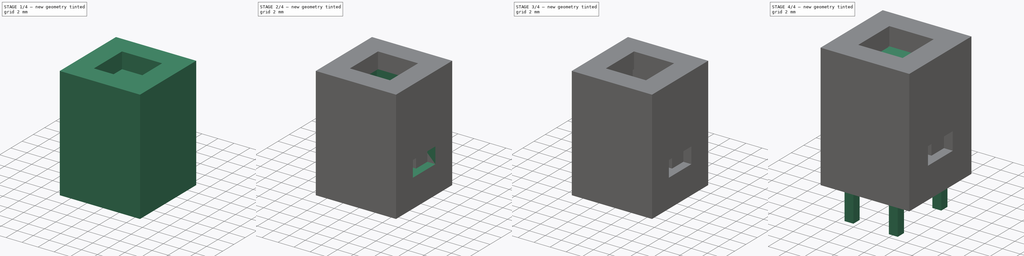
[diagram: build sequence overview — one tinted view per stage of 4, left to right]
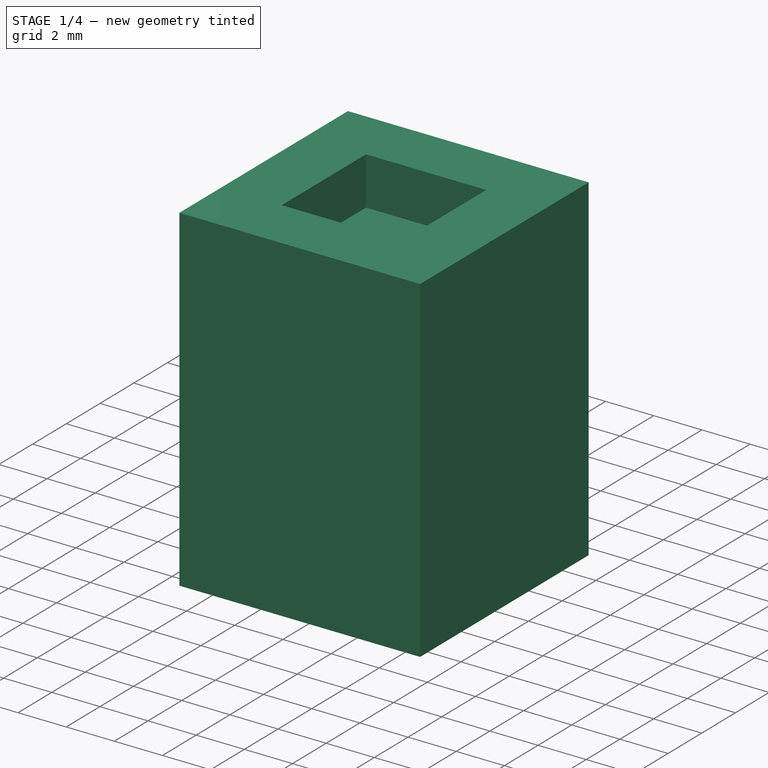
[diagram: stage 1 of 4 — iso view after this stage's code; geometry added in this stage tinted green]
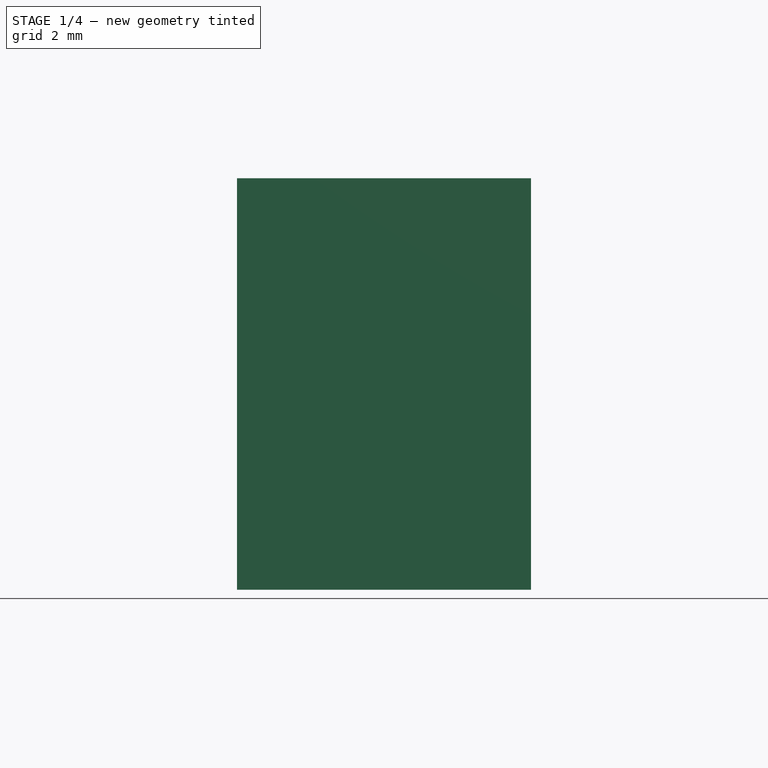
[diagram: stage 1 of 4 — front view after this stage's code; geometry added in this stage tinted green]
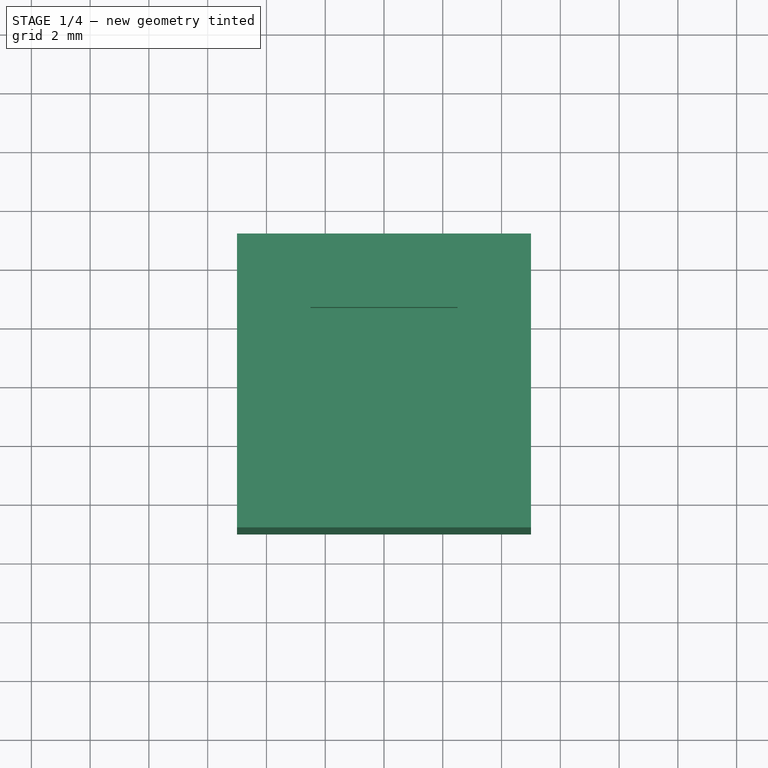
[diagram: stage 1 of 4 — top view after this stage's code; geometry added in this stage tinted green]
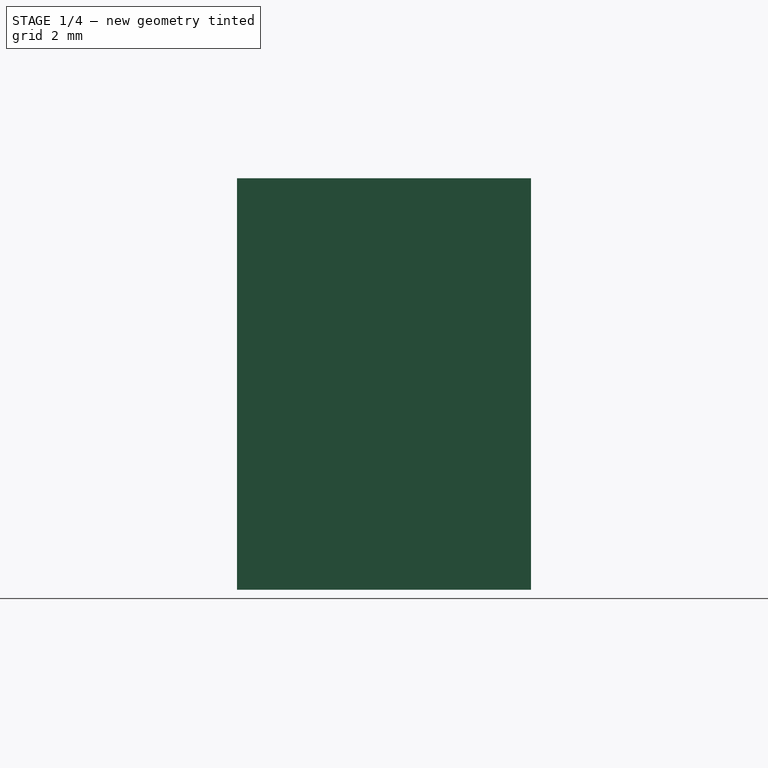
[diagram: stage 1 of 4 — right view after this stage's code; geometry added in this stage tinted green]
FCSTD DOCUMENT  (FreeCAD 0.18R4 (GitTag))
Label: clickbutton
License: All rights reserved
LicenseURL: http://en.wikipedia.org/wiki/All_rights_reserved
objects: Sketcher::SketchObject×10, PartDesign::Pad×6, PartDesign::Pocket×4, PartDesign::Body×4, Part::Box×1
note: 35 computed .brp shape members not serialized (recipe doc carries the construction recipe); baked Part::Feature solids carry a one-line shape summary decoded from their .brp

FEATURE [Sketcher::SketchObject] Sketch
  MapMode = 5
  Support = -> [XY_Plane001]
  sketch-geometry (4):
    g0: LineSegment StartX=-5 StartY=5 StartZ=0 EndX=5 EndY=5 EndZ=0
    g1: LineSegment StartX=5 StartY=5 StartZ=0 EndX=5 EndY=-5 EndZ=0
    g2: LineSegment StartX=5 StartY=-5 StartZ=0 EndX=-5 EndY=-5 EndZ=0
    g3: LineSegment StartX=-5 StartY=-5 StartZ=0 EndX=-5 EndY=5 EndZ=0
  constraints (10):
    c: Coincident(g0,g1)
    c: Coincident(g1,g2)
    c: Coincident(g2,g3)
    c: Coincident(g3,g0)
    c: Horizontal(g2)
    c: Vertical(g1)
    c: DistanceX(g0,g0) = 10
    c: Equal(g0,g1)
    c: Symmetric(g0,g2,g-1)
    c: Symmetric(g0,g0,g-2)
FEATURE [PartDesign::Pad] Pad
  Length = 14
  Length2 = 100
  Profile = -> Sketch
  Type = 0
FEATURE [Sketcher::SketchObject] Sketch001
  MapMode = 5
  Placement = pos=(0,0,14) rot=(0,0,1;0rad)
  Support = -> [Pad]
  sketch-geometry (4):
    g0: LineSegment StartX=-2.5 StartY=2.5 StartZ=0 EndX=2.5 EndY=2.5 EndZ=0
    g1: LineSegment StartX=2.5 StartY=2.5 StartZ=0 EndX=2.5 EndY=-2.5 EndZ=0
    g2: LineSegment StartX=2.5 StartY=-2.5 StartZ=0 EndX=-2.5 EndY=-2.5 EndZ=0
    g3: LineSegment StartX=-2.5 StartY=-2.5 StartZ=0 EndX=-2.5 EndY=2.5 EndZ=0
  constraints (10):
    c: Coincident(g0,g1)
    c: Coincident(g1,g2)
    c: Coincident(g2,g3)
    c: Coincident(g3,g0)
    c: Horizontal(g2)
    c: Vertical(g1)
    c: Equal(g1,g0)
    c: Symmetric(g0,g2,g-1)
    c: Symmetric(g0,g0,g-2)
    c: DistanceX(g0,g0) = 5
FEATURE [PartDesign::Pocket] Pocket
  BaseFeature = -> Pad
  Length = 2
  Length2 = 100
  Profile = -> Sketch001
  Type = 0
FEATURE [PartDesign::Body] Body001
  Group = -> [Sketch,Pad,Sketch001,Pocket,Pocket003,Sketch008,Pocket004,Sketch009,Pocket005]
  Origin = -> Origin001
  Tip = -> Pocket005
FEATURE [PartDesign::Body] Body003  label="Lock"
  Origin = -> Origin003
  Placement = pos=(0,11,0) rot=(0,0,1;0rad)
FEATURE [Part::Box] Box  label="Cube"
  AttacherType = Attacher::AttachEngine3D
  Height = 10
  Length = 4
  Width = 2
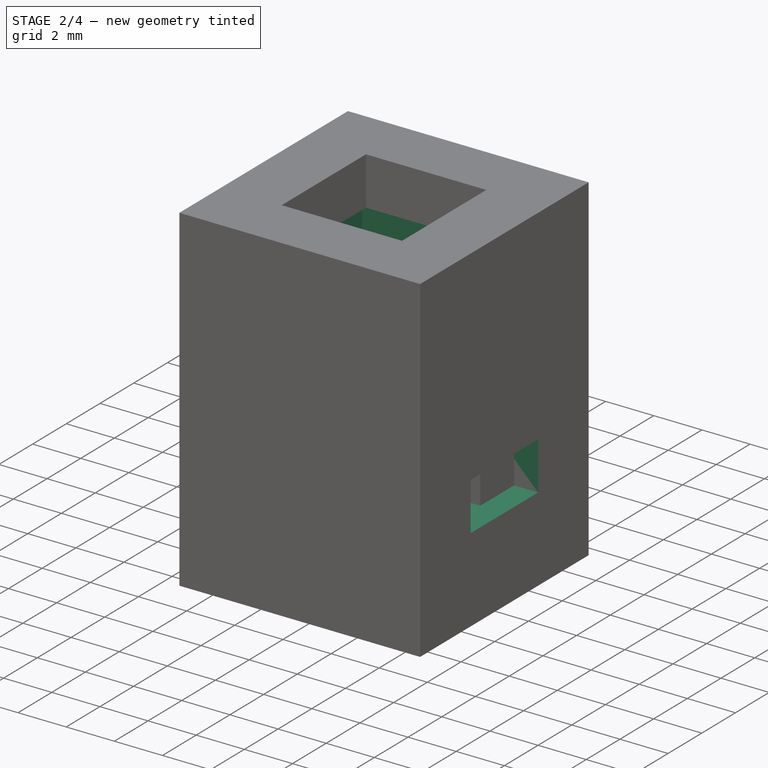
[diagram: stage 2 of 4 — iso view after this stage's code; geometry added in this stage tinted green]
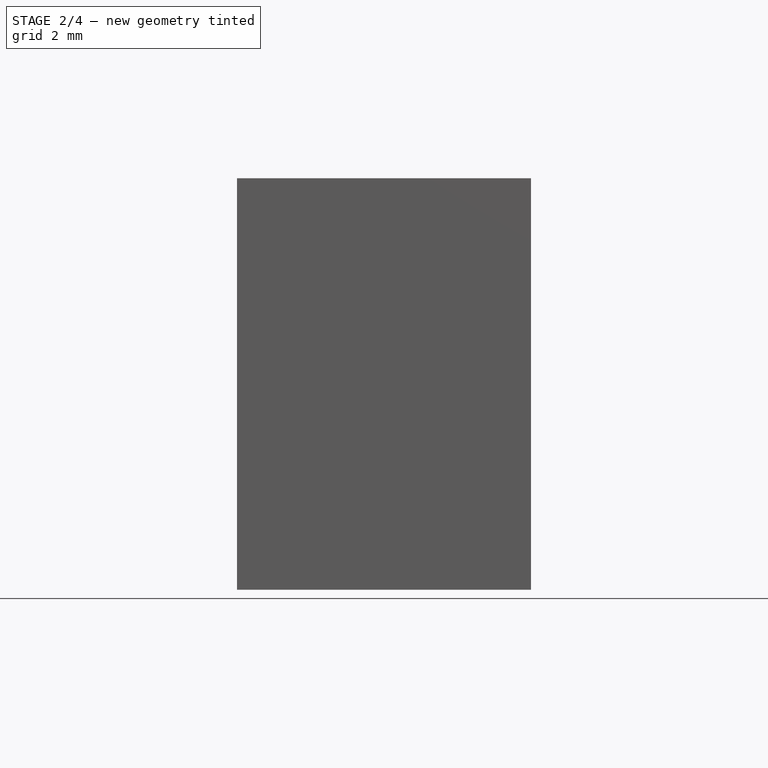
[diagram: stage 2 of 4 — front view after this stage's code; geometry added in this stage tinted green]
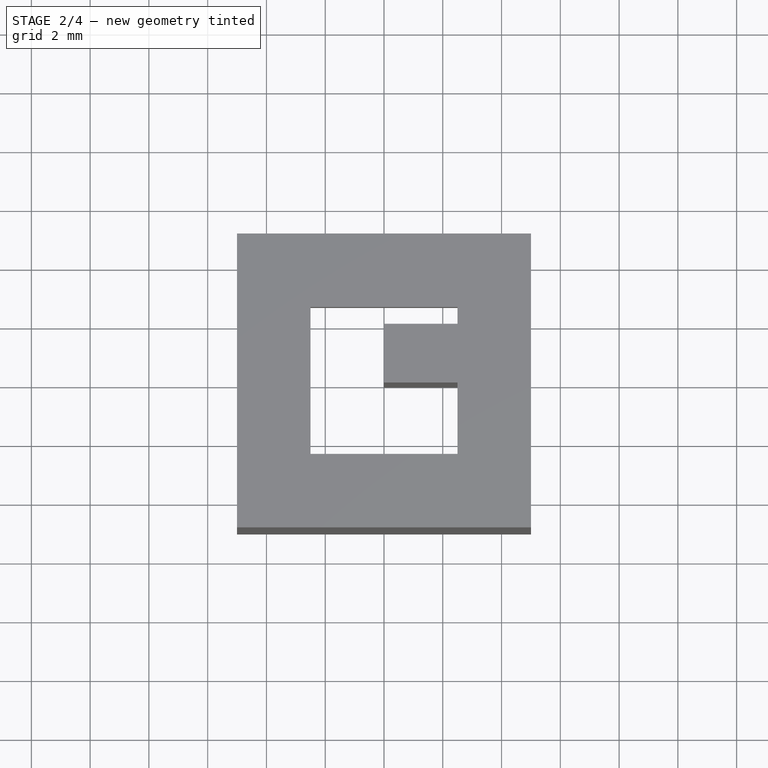
[diagram: stage 2 of 4 — top view after this stage's code; geometry added in this stage tinted green]
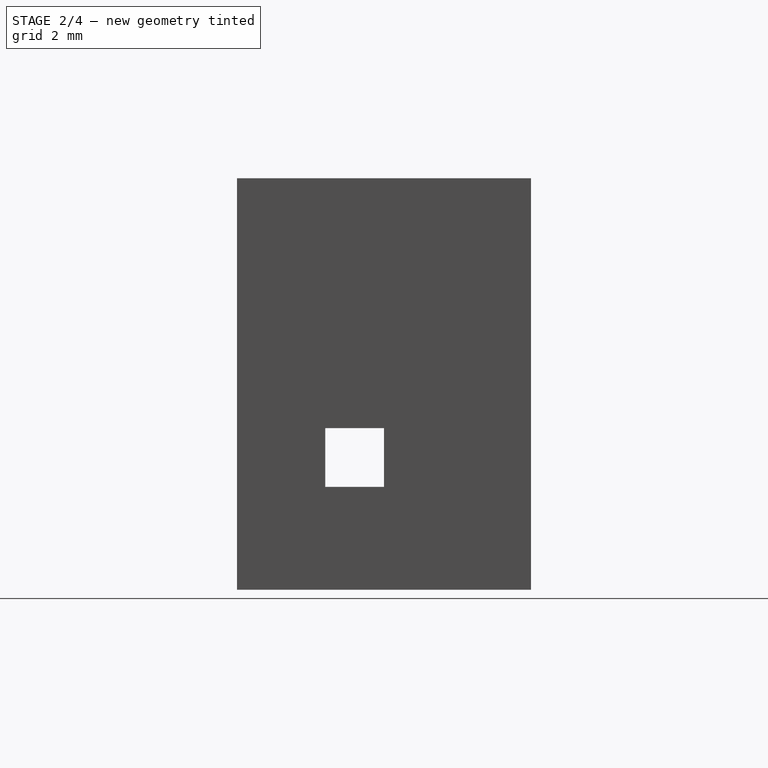
[diagram: stage 2 of 4 — right view after this stage's code; geometry added in this stage tinted green]
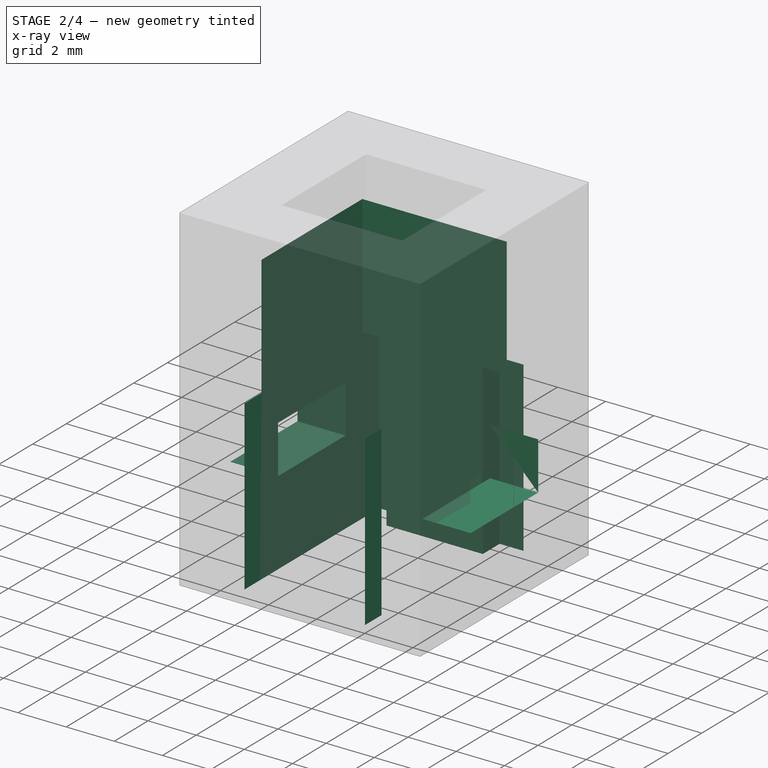
[diagram: stage 2 of 4 — x-ray composite at the iso view; earlier geometry ghosted, this stage's added geometry solid]
FEATURE [PartDesign::Body] Body002  label="Body_Switch"
  Group = -> [Sketch005,Pad003,Sketch006,Pad004,Sketch007,Pad005]
  Origin = -> Origin002
  Placement = pos=(0,0,5.5) rot=(0,0,1;0rad)
  Tip = -> Pad005
FEATURE [Sketcher::SketchObject] CopySketch009001  label="SwitchLegs"
  Placement = pos=(0,0,7) rot=(0,0,1;0rad)
  sketch-geometry (16):
    g0: LineSegment StartX=-3 StartY=4 StartZ=0 EndX=-2 EndY=4 EndZ=0
    g1: LineSegment StartX=-2 StartY=4 StartZ=0 EndX=-2 EndY=3 EndZ=0
    g2: LineSegment StartX=-2 StartY=3 StartZ=0 EndX=-3 EndY=3 EndZ=0
    g3: LineSegment StartX=-3 StartY=3 StartZ=0 EndX=-3 EndY=4 EndZ=0
    g4: LineSegment StartX=-3 StartY=-3 StartZ=0 EndX=-2 EndY=-3 EndZ=0
    g5: LineSegment StartX=-2 StartY=-3 StartZ=0 EndX=-2 EndY=-4 EndZ=0
    g6: LineSegment StartX=-2 StartY=-4 StartZ=0 EndX=-3 EndY=-4 EndZ=0
    g7: LineSegment StartX=-3 StartY=-4 StartZ=0 EndX=-3 EndY=-3 EndZ=0
    g8: LineSegment StartX=2 StartY=4 StartZ=0 EndX=3 EndY=4 EndZ=0
    g9: LineSegment StartX=3 StartY=4 StartZ=0 EndX=3 EndY=3 EndZ=0
    g10: LineSegment StartX=3 StartY=3 StartZ=0 EndX=2 EndY=3 EndZ=0
    g11: LineSegment StartX=2 StartY=3 StartZ=0 EndX=2 EndY=4 EndZ=0
    g12: LineSegment StartX=2 StartY=-3 StartZ=0 EndX=3 EndY=-3 EndZ=0
    g13: LineSegment StartX=3 StartY=-3 StartZ=0 EndX=3 EndY=-4 EndZ=0
    g14: LineSegment StartX=3 StartY=-4 StartZ=0 EndX=2 EndY=-4 EndZ=0
    g15: LineSegment StartX=2 StartY=-4 StartZ=0 EndX=2 EndY=-3 EndZ=0
  constraints (45):
    c: Coincident(g0,g1)
    c: Coincident(g1,g2)
    c: Coincident(g2,g3)
    c: Coincident(g3,g0)
    c: Horizontal(g0)
    c: Horizontal(g2)
    c: Vertical(g1)
    c: Vertical(g3)
    c: DistanceX(g0,g0) = 1
    c: Equal(g1,g0)
    c: Coincident(g4,g5)
    c: Coincident(g5,g6)
    c: Coincident(g6,g7)
    c: Coincident(g7,g4)
    c: Horizontal(g4)
    c: Horizontal(g6)
    c: Vertical(g5)
    c: Vertical(g7)
    c: Equal(g0,g4) = 1.5
    c: Equal(g5,g4)
    c: Coincident(g8,g9)
    c: Coincident(g9,g10)
    c: Coincident(g10,g11)
    c: Coincident(g11,g8)
    c: Horizontal(g8)
    c: Horizontal(g10)
    c: Vertical(g9)
    c: Vertical(g11)
    c: Equal(g0,g8) = 1
    c: Equal(g9,g8)
    c: Coincident(g12,g13)
    c: Coincident(g13,g14)
    c: Coincident(g14,g15)
    c: Coincident(g15,g12)
    c: Horizontal(g12)
    c: Horizontal(g14)
    c: Vertical(g13)
    c: Vertical(g15)
    c: Equal(g0,g12) = 1
    c: Equal(g13,g12)
    c: Symmetric(g12,g4,g-2)
    c: Symmetric(g9,g2,g-2)
    c: Symmetric(g2,g4,g-1)
    c: DistanceX(g-1,g9) = 3
    c: DistanceY(g-1,g9) = 3
FEATURE [PartDesign::Pocket] Pocket003  label="CutSwitchLegs"
  BaseFeature = -> Pocket
  Length = 5
  Length2 = 100
  Profile = -> CopySketch009001
  Type = 1
FEATURE [Sketcher::SketchObject] Sketch008
  MapMode = 5
  Placement = pos=(0,0,12) rot=(0,0,1;0rad)
  Support = -> [Pocket]
  sketch-geometry (4):
    g0: LineSegment StartX=-3 StartY=3 StartZ=0 EndX=3 EndY=3 EndZ=0
    g1: LineSegment StartX=3 StartY=3 StartZ=0 EndX=3 EndY=-3 EndZ=0
    g2: LineSegment StartX=3 StartY=-3 StartZ=0 EndX=-3 EndY=-3 EndZ=0
    g3: LineSegment StartX=-3 StartY=-3 StartZ=0 EndX=-3 EndY=3 EndZ=0
  constraints (10):
    c: Coincident(g0,g1)
    c: Coincident(g1,g2)
    c: Coincident(g2,g3)
    c: Coincident(g3,g0)
    c: Horizontal(g2)
    c: Vertical(g1)
    c: Equal(g0,g3)
    c: DistanceX(g0,g0) = 6
    c: Symmetric(g0,g0,g-2)
    c: Symmetric(g0,g2,g-1)
FEATURE [PartDesign::Pocket] Pocket004
  BaseFeature = -> Pocket003
  Length = 12
  Length2 = 100
  Profile = -> Sketch008
  Type = 0
FEATURE [Sketcher::SketchObject] Sketch009
  MapMode = 5
  Placement = pos=(-5,0,0) rot=(0.57735,-0.57735,-0.57735;2.0944rad)
  Support = -> [Pocket004]
  sketch-geometry (4):
    g0: LineSegment StartX=-2 StartY=5.5 StartZ=0 EndX=2 EndY=5.5 EndZ=0
    g1: LineSegment StartX=2 StartY=5.5 StartZ=0 EndX=2 EndY=3.5 EndZ=0
    g2: LineSegment StartX=2 StartY=3.5 StartZ=0 EndX=-2 EndY=3.5 EndZ=0
    g3: LineSegment StartX=-2 StartY=3.5 StartZ=0 EndX=-2 EndY=5.5 EndZ=0
  constraints (11):
    c: Coincident(g0,g1)
    c: Coincident(g1,g2)
    c: Coincident(g2,g3)
    c: Coincident(g3,g0)
    c: Horizontal(g2)
    c: Vertical(g1)
    c: Vertical(g3)
    c: DistanceX(g0,g0) = 4
    c: DistanceY(g1,g1) = 2
    c: Symmetric(g0,g0,g-2)
    c: DistanceY(g-1,g0) = 5.5
FEATURE [PartDesign::Pocket] Pocket005
  BaseFeature = -> Pocket004
  Length = 5
  Length2 = 100
  Profile = -> Sketch009
  Type = 1
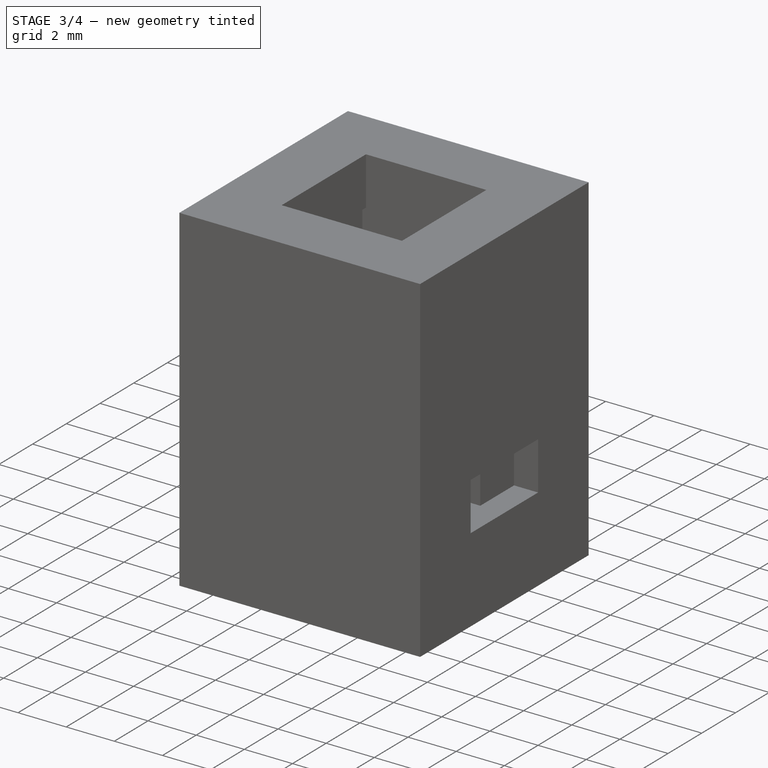
[diagram: stage 3 of 4 — iso view after this stage's code; geometry added in this stage tinted green]
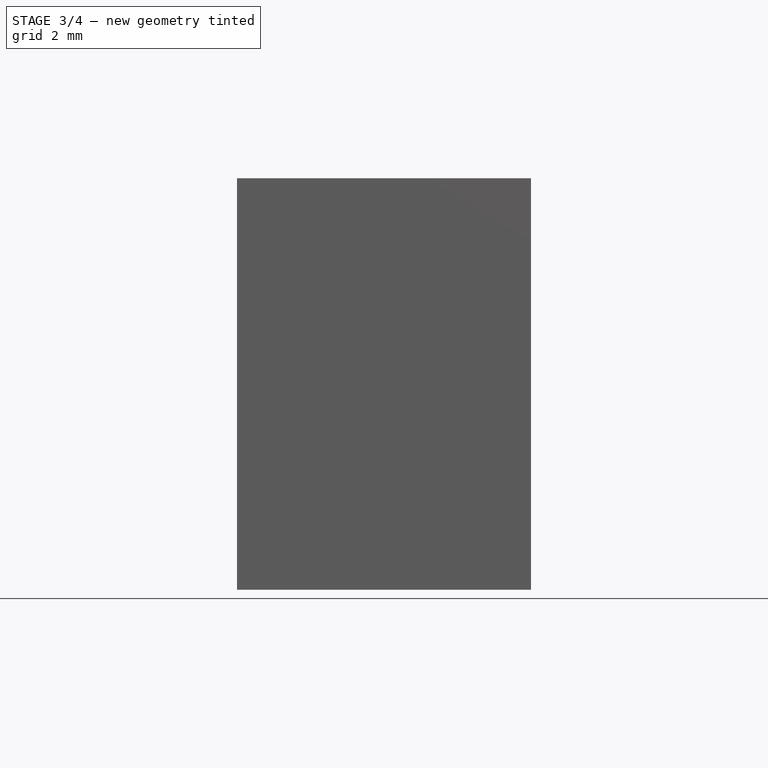
[diagram: stage 3 of 4 — front view after this stage's code; geometry added in this stage tinted green]
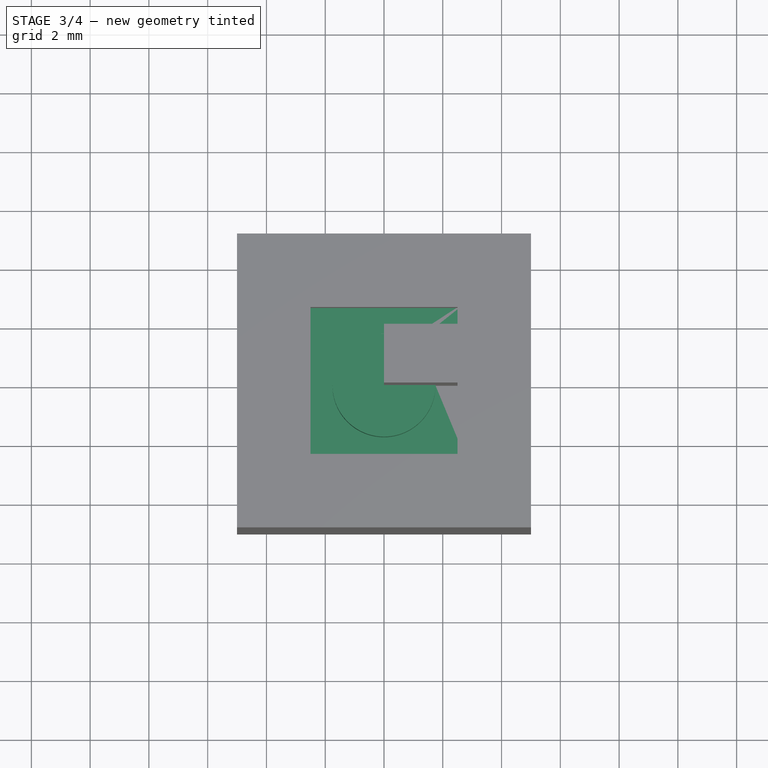
[diagram: stage 3 of 4 — top view after this stage's code; geometry added in this stage tinted green]
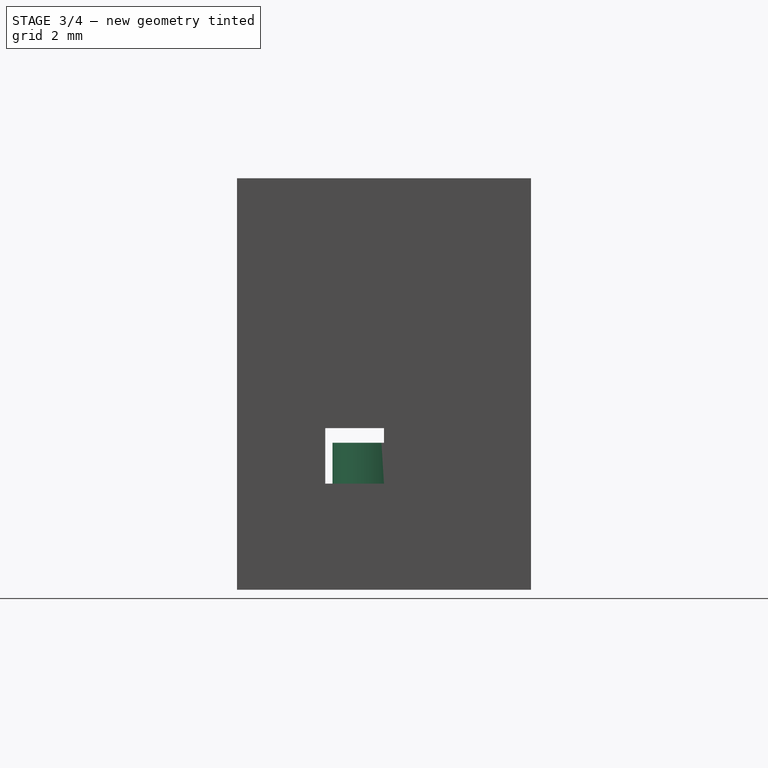
[diagram: stage 3 of 4 — right view after this stage's code; geometry added in this stage tinted green]
FEATURE [PartDesign::Body] Body  label="Body_PushElement"
  Group = -> [Sketch003,Pad001,Sketch004,Pad002]
  Origin = -> Origin
  Placement = pos=(0,0,4) rot=(0,0,1;0rad)
  Tip = -> Pad002
FEATURE [Sketcher::SketchObject] Sketch005
  MapMode = 5
  Support = -> [XY_Plane002]
  sketch-geometry (4):
    g0: LineSegment StartX=-3 StartY=3 StartZ=0 EndX=3 EndY=3 EndZ=0
    g1: LineSegment StartX=3 StartY=3 StartZ=0 EndX=3 EndY=-3 EndZ=0
    g2: LineSegment StartX=3 StartY=-3 StartZ=0 EndX=-3 EndY=-3 EndZ=0
    g3: LineSegment StartX=-3 StartY=-3 StartZ=0 EndX=-3 EndY=3 EndZ=0
  constraints (10):
    c: Coincident(g0,g1)
    c: Coincident(g1,g2)
    c: Coincident(g2,g3)
    c: Coincident(g3,g0)
    c: Horizontal(g2)
    c: Vertical(g1)
    c: Equal(g0,g3)
    c: Symmetric(g0,g0,g-2)
    c: Symmetric(g0,g2,g-1)
    c: DistanceX(g2,g2) = 6
FEATURE [PartDesign::Pad] Pad003
  Length = 3.61
  Length2 = 100
  Profile = -> Sketch005
  Type = 0
FEATURE [Sketcher::SketchObject] Sketch006
  MapMode = 5
  Placement = pos=(0,0,3.61) rot=(0,0,1;0rad)
  Support = -> [Pad003]
  sketch-geometry (1):
    g0: Circle CenterX=0 CenterY=0 CenterZ=0 NormalX=0 NormalY=0 NormalZ=1 AngleXU=0 Radius=1.755
  constraints (2):
    c: Coincident(g0,g-1)
    c: Diameter(g0) = 3.51
FEATURE [PartDesign::Pad] Pad004
  BaseFeature = -> Pad003
  Length = 1.39
  Length2 = 100
  Profile = -> Sketch006
  Type = 0
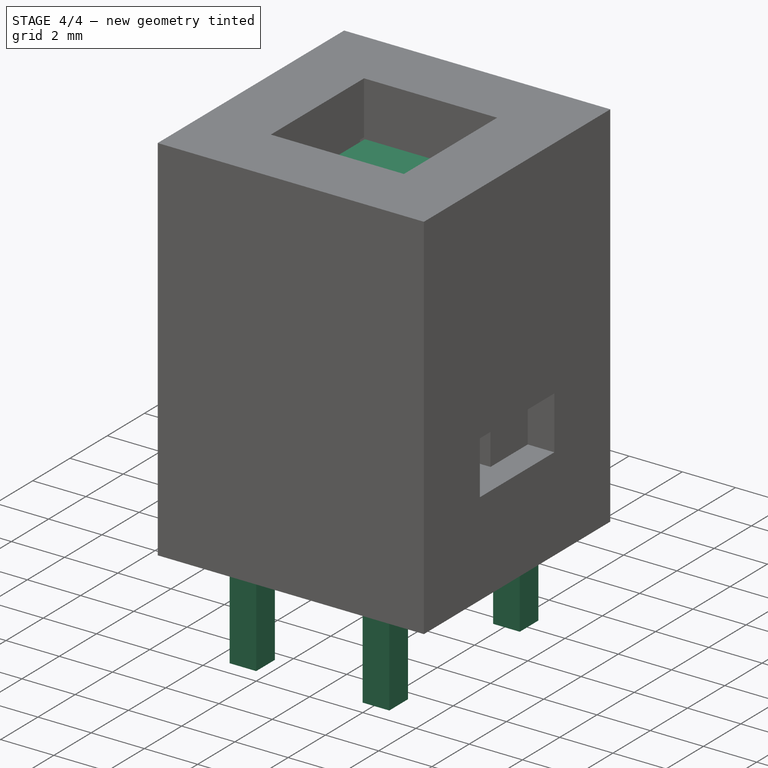
[diagram: stage 4 of 4 — iso view after this stage's code; geometry added in this stage tinted green]
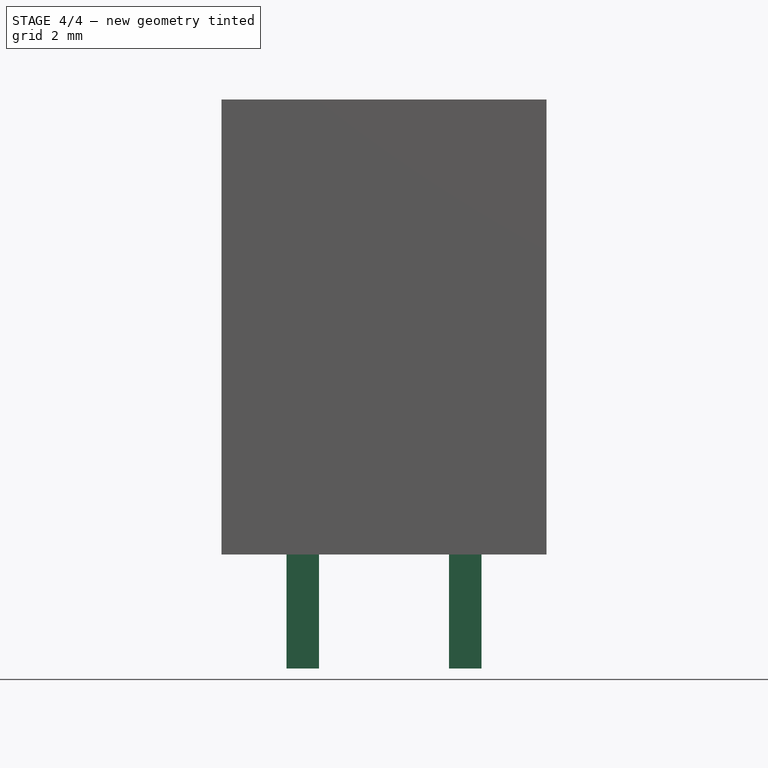
[diagram: stage 4 of 4 — front view after this stage's code; geometry added in this stage tinted green]
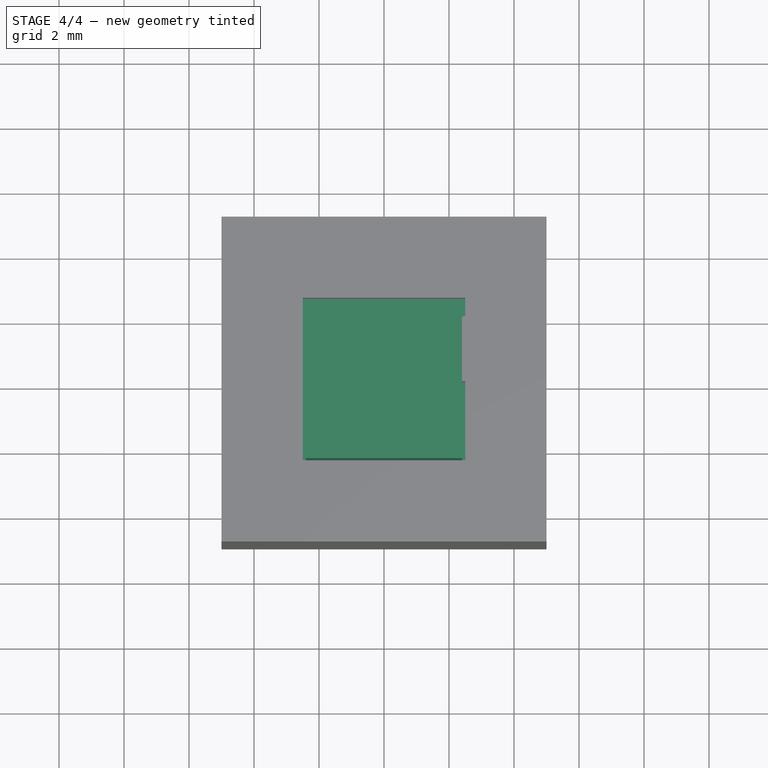
[diagram: stage 4 of 4 — top view after this stage's code; geometry added in this stage tinted green]
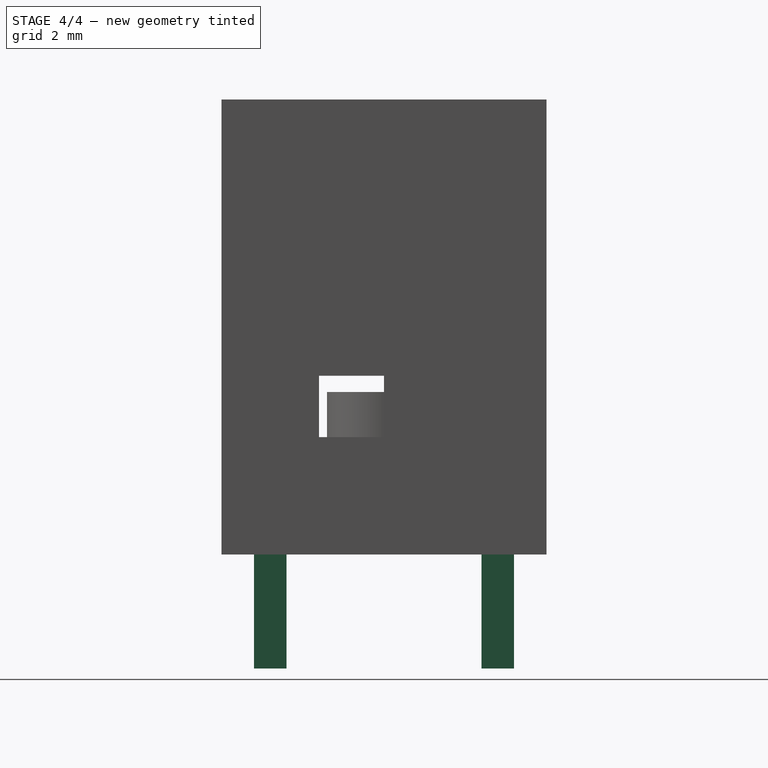
[diagram: stage 4 of 4 — right view after this stage's code; geometry added in this stage tinted green]
FEATURE [Sketcher::SketchObject] Sketch003
  AttachmentOffset = pos=(0,0,12) rot=(0,0,1;0rad)
  MapMode = 5
  Placement = pos=(0,0,12) rot=(0,0,1;0rad)
  Support = -> [XY_Plane]
  sketch-geometry (4):
    g0: LineSegment StartX=-2.4 StartY=2.4 StartZ=0 EndX=2.4 EndY=2.4 EndZ=0
    g1: LineSegment StartX=2.4 StartY=2.4 StartZ=0 EndX=2.4 EndY=-2.4 EndZ=0
    g2: LineSegment StartX=2.4 StartY=-2.4 StartZ=0 EndX=-2.4 EndY=-2.4 EndZ=0
    g3: LineSegment StartX=-2.4 StartY=-2.4 StartZ=0 EndX=-2.4 EndY=2.4 EndZ=0
  constraints (10):
    c: Coincident(g0,g1)
    c: Coincident(g1,g2)
    c: Coincident(g2,g3)
    c: Coincident(g3,g0)
    c: Horizontal(g2)
    c: Vertical(g1)
    c: Equal(g0,g3)
    c: Symmetric(g0,g0,g-2)
    c: Symmetric(g2,g0,g-1)
    c: DistanceX(g2,g2) = 4.8
FEATURE [PartDesign::Pad] Pad001
  Length = 4
  Length2 = 100
  Profile = -> Sketch003
  Reversed = true
  Type = 0
FEATURE [Sketcher::SketchObject] Sketch004
  MapMode = 5
  Placement = pos=(0,0,8) rot=(1,0,0;3.14159rad)
  Support = -> [Pad001]
  sketch-geometry (4):
    g0: LineSegment StartX=-2.9 StartY=2.9 StartZ=0 EndX=2.9 EndY=2.9 EndZ=0
    g1: LineSegment StartX=2.9 StartY=2.9 StartZ=0 EndX=2.9 EndY=-2.9 EndZ=0
    g2: LineSegment StartX=2.9 StartY=-2.9 StartZ=0 EndX=-2.9 EndY=-2.9 EndZ=0
    g3: LineSegment StartX=-2.9 StartY=-2.9 StartZ=0 EndX=-2.9 EndY=2.9 EndZ=0
  constraints (10):
    c: Coincident(g0,g1)
    c: Coincident(g1,g2)
    c: Coincident(g2,g3)
    c: Coincident(g3,g0)
    c: Horizontal(g2)
    c: Vertical(g1)
    c: Equal(g0,g3)
    c: Symmetric(g0,g0,g-2)
    c: Symmetric(g2,g0,g-1)
    c: DistanceX(g2,g2) = 5.8
FEATURE [PartDesign::Pad] Pad002
  BaseFeature = -> Pad001
  Length = 1.5
  Length2 = 100
  Profile = -> Sketch004
  Type = 0
FEATURE [Sketcher::SketchObject] Sketch007
  AttachmentOffset = pos=(0,0,-1) rot=(0,0,1;0rad)
  MapMode = 5
  Placement = pos=(0,0,1) rot=(1,0,0;3.14159rad)
  Support = -> [Pad004]
  sketch-geometry (16):
    g0: LineSegment StartX=-3 StartY=4 StartZ=0 EndX=-2 EndY=4 EndZ=0
    g1: LineSegment StartX=-2 StartY=4 StartZ=0 EndX=-2 EndY=3 EndZ=0
    g2: LineSegment StartX=-2 StartY=3 StartZ=0 EndX=-3 EndY=3 EndZ=0
    g3: LineSegment StartX=-3 StartY=3 StartZ=0 EndX=-3 EndY=4 EndZ=0
    g4: LineSegment StartX=-3 StartY=-3 StartZ=0 EndX=-2 EndY=-3 EndZ=0
    g5: LineSegment StartX=-2 StartY=-3 StartZ=0 EndX=-2 EndY=-4 EndZ=0
    g6: LineSegment StartX=-2 StartY=-4 StartZ=0 EndX=-3 EndY=-4 EndZ=0
    g7: LineSegment StartX=-3 StartY=-4 StartZ=0 EndX=-3 EndY=-3 EndZ=0
    g8: LineSegment StartX=2 StartY=-3 StartZ=0 EndX=3 EndY=-3 EndZ=0
    g9: LineSegment StartX=3 StartY=-3 StartZ=0 EndX=3 EndY=-4 EndZ=0
    g10: LineSegment StartX=3 StartY=-4 StartZ=0 EndX=2 EndY=-4 EndZ=0
    g11: LineSegment StartX=2 StartY=-4 StartZ=0 EndX=2 EndY=-3 EndZ=0
    g12: LineSegment StartX=2 StartY=4 StartZ=0 EndX=3 EndY=4 EndZ=0
    g13: LineSegment StartX=3 StartY=4 StartZ=0 EndX=3 EndY=3 EndZ=0
    g14: LineSegment StartX=3 StartY=3 StartZ=0 EndX=2 EndY=3 EndZ=0
    g15: LineSegment StartX=2 StartY=3 StartZ=0 EndX=2 EndY=4 EndZ=0
  constraints (45):
    c: Coincident(g0,g1)
    c: Coincident(g1,g2)
    c: Coincident(g2,g3)
    c: Coincident(g3,g0)
    c: Horizontal(g0)
    c: Horizontal(g2)
    c: Vertical(g1)
    c: Vertical(g3)
    c: DistanceY(g3,g3) = 1
    c: DistanceX(g0,g0) = 1
    c: Coincident(g4,g5)
    c: Coincident(g5,g6)
    c: Coincident(g6,g7)
    c: Coincident(g7,g4)
    c: Horizontal(g4)
    c: Horizontal(g6)
    c: Vertical(g5)
    c: Vertical(g7)
    c: Equal(g3,g7) = 1
    c: Equal(g0,g4) = 1
    c: Coincident(g8,g9)
    c: Coincident(g9,g10)
    c: Coincident(g10,g11)
    c: Coincident(g11,g8)
    c: Horizontal(g8)
    c: Horizontal(g10)
    c: Vertical(g9)
    c: Vertical(g11)
    c: Equal(g8,g2)
    c: Equal(g11,g1)
    c: Coincident(g12,g13)
    c: Coincident(g13,g14)
    c: Coincident(g14,g15)
    c: Coincident(g15,g12)
    c: Horizontal(g12)
    c: Horizontal(g14)
    c: Vertical(g13)
    c: Vertical(g15)
    c: Equal(g14,g2)
    c: Equal(g15,g1)
    c: Symmetric(g13,g2,g-2)
    c: Symmetric(g4,g2,g-1)
    c: Symmetric(g4,g8,g-2)
    c: DistanceX(g4,g8) = 6
    c: DistanceY(g4,g2) = 6
FEATURE [PartDesign::Pad] Pad005
  BaseFeature = -> Pad004
  Length = 4.51
  Length2 = 100
  Profile = -> Sketch007
  Type = 0
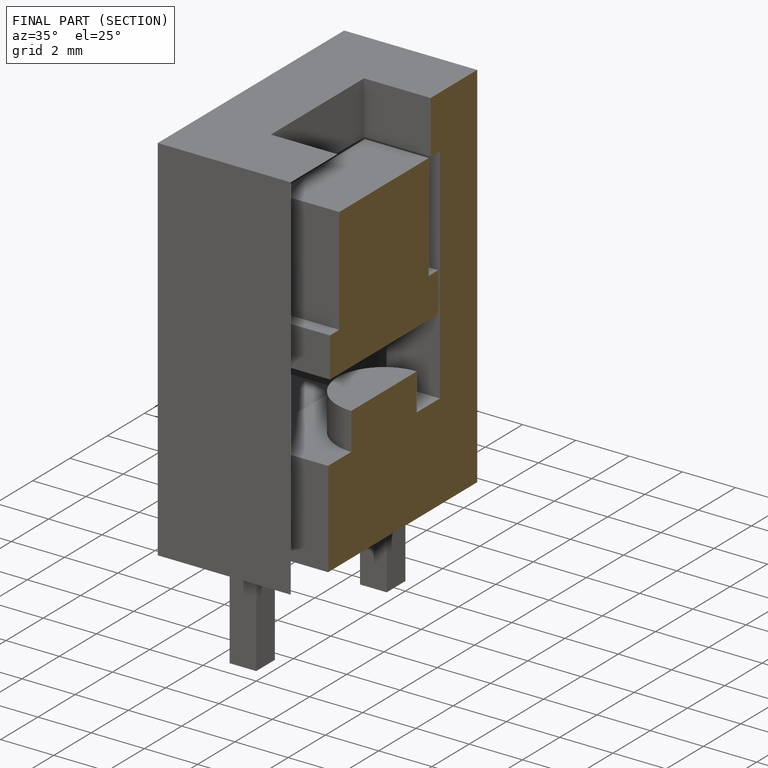
[diagram: finished part — half-section view (interior)]
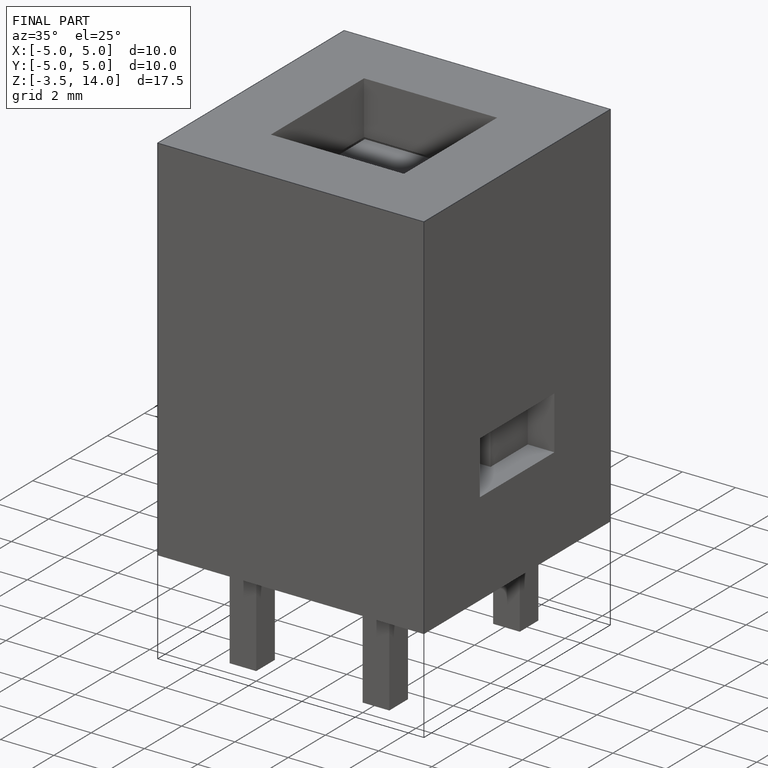
[diagram: finished part — iso view with bounding-box wireframe]
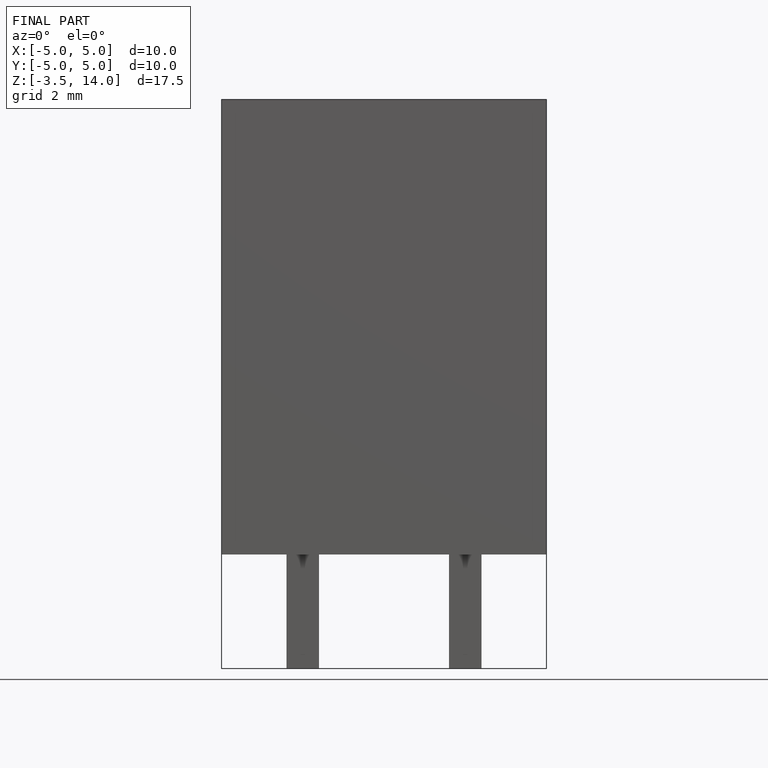
[diagram: finished part — front view with bounding-box wireframe]
